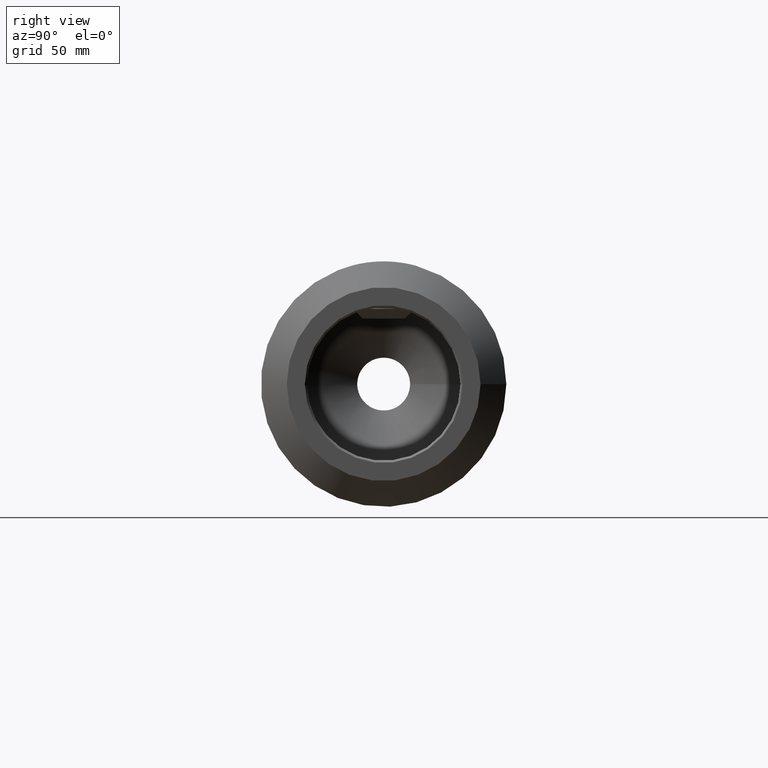
[diagram: clean part render]
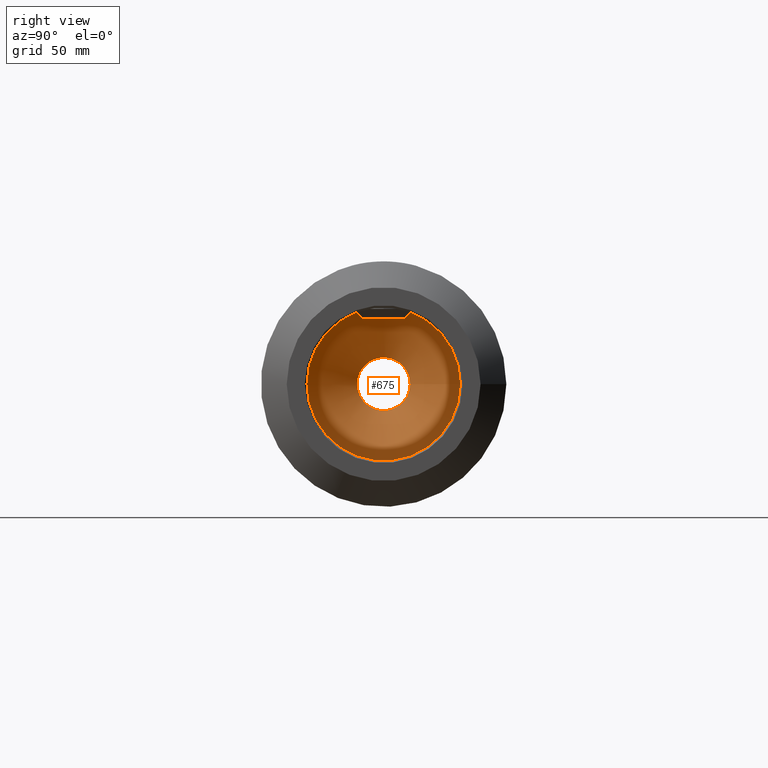
[diagram: same view with one face highlighted and labeled with its STEP entity id]
A machine part, right view. The second image highlights one B-rep face of the part: STEP entity #675.
In plain terms, the highlighted conical surface has half-angle 59 deg.
Its self-contained STEP definition (entity closure, byte-faithful):
#644=CARTESIAN_POINT('',(2.500000000000001,1.25,0.0));
#645=VERTEX_POINT('',#644);
#646=CARTESIAN_POINT('',(2.500000000000001,0.0,0.0));
#647=DIRECTION('',(-1.0,0.0,0.0));
#648=DIRECTION('',(0.0,1.0,0.0));
#649=AXIS2_PLACEMENT_3D('',#646,#647,#648);
#650=CIRCLE('',#649,1.25);
#651=EDGE_CURVE('',#645,#645,#650,.T.);
#656=CARTESIAN_POINT('',(2.124462113107775,0.0,0.0));
#657=DIRECTION('',(1.0,0.0,0.0));
#658=DIRECTION('',(0.0,1.0,0.0));
#659=AXIS2_PLACEMENT_3D('',#656,#657,#658);
#660=CONICAL_SURFACE('',#659,0.625,59.000000000000007);
#661=CARTESIAN_POINT('',(2.00879644394497,0.4325,-5.296597E-017));
#662=VERTEX_POINT('',#661);
#663=CARTESIAN_POINT('',(2.00879644394497,0.0,0.0));
#664=DIRECTION('',(-1.0,0.0,0.0));
#665=DIRECTION('',(0.0,-1.0,0.0));
#666=AXIS2_PLACEMENT_3D('',#663,#664,#665);
#667=CIRCLE('',#666,0.4325);
#668=EDGE_CURVE('',#662,#662,#667,.T.);
#669=ORIENTED_EDGE('',*,*,#668,.T.);
#670=EDGE_LOOP('',(#669));
#671=FACE_OUTER_BOUND('',#670,.T.);
#672=ORIENTED_EDGE('',*,*,#651,.F.);
#673=EDGE_LOOP('',(#672));
#674=FACE_BOUND('',#673,.T.);
#675=ADVANCED_FACE('',(#671,#674),#660,.F.);